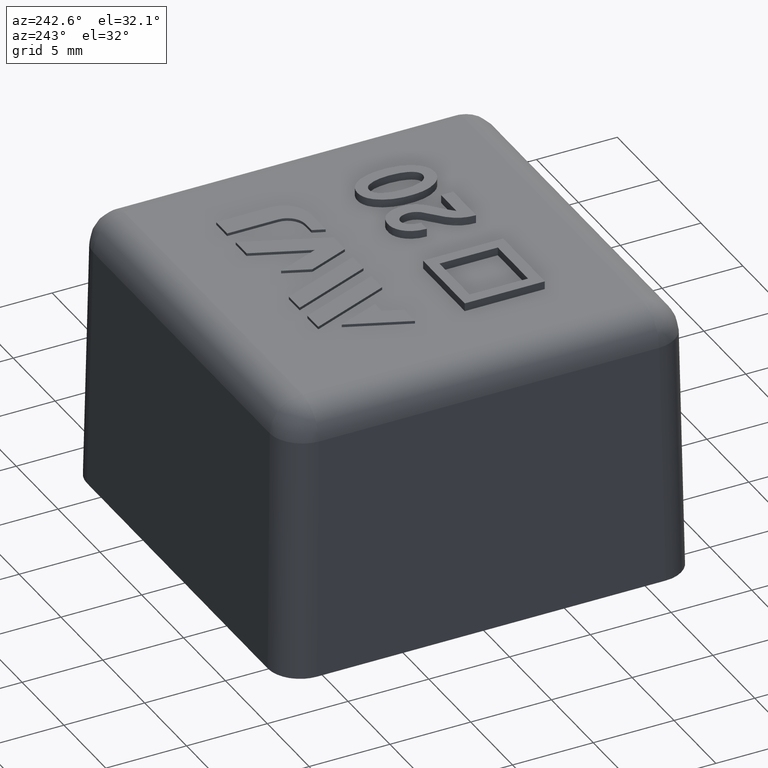
[diagram: clean part render]
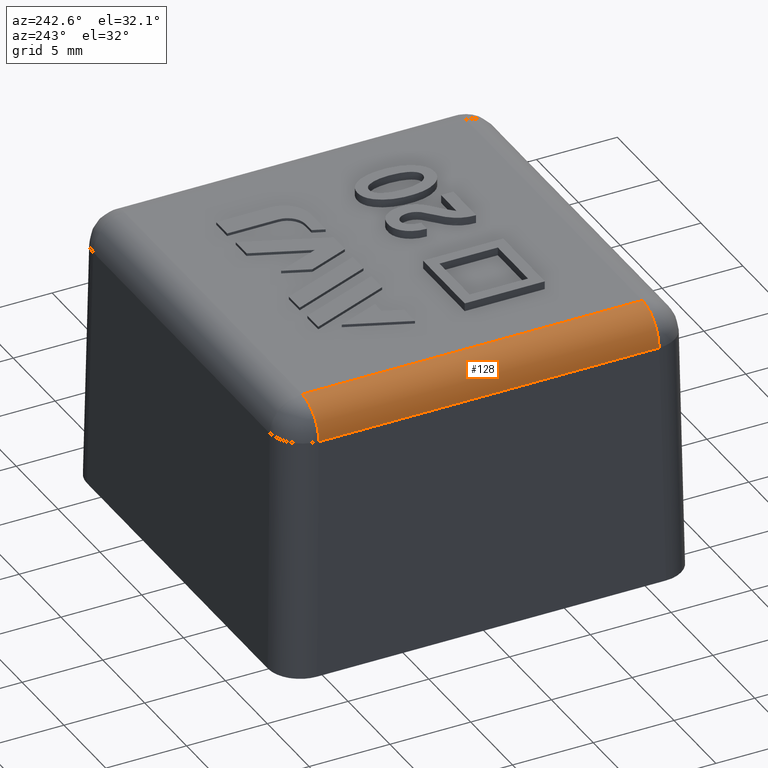
[diagram: same view with one face highlighted and labeled with its STEP entity id]
A machine part, auxiliary view. The second image highlights one B-rep face of the part: STEP entity #128.
In plain terms, the highlighted cylindrical surface (edge-blend (fillet) strip) has radius 2 mm, axis along (0, 1, 0).
Its self-contained STEP definition (entity closure, byte-faithful):
#128 = ADVANCED_FACE( '', ( #268 ), #269, .T. );
#268 = FACE_OUTER_BOUND( '', #437, .T. );
#269 = CYLINDRICAL_SURFACE( '', #438, 2.00000000000000 );
#437 = EDGE_LOOP( '', ( #932, #933, #934, #935 ) );
#438 = AXIS2_PLACEMENT_3D( '', #936, #937, #938 );
#932 = ORIENTED_EDGE( '', *, *, #1271, .T. );
#933 = ORIENTED_EDGE( '', *, *, #1139, .F. );
#934 = ORIENTED_EDGE( '', *, *, #1268, .F. );
#935 = ORIENTED_EDGE( '', *, *, #1174, .F. );
#936 = CARTESIAN_POINT( '', ( -10.5378693699889, -12.8000000000000, 15.0000000000000 ) );
#937 = DIRECTION( '', ( 0.000000000000000, 1.00000000000000, 0.000000000000000 ) );
#938 = DIRECTION( '', ( 0.000000000000000, 0.000000000000000, -1.00000000000000 ) );
#1139 = EDGE_CURVE( '', #1325, #1320, #1327, .F. );
#1174 = EDGE_CURVE( '', #1395, #1397, #1398, .F. );
#1268 = EDGE_CURVE( '', #1397, #1325, #1541, .T. );
#1271 = EDGE_CURVE( '', #1395, #1320, #1545, .T. );
#1320 = VERTEX_POINT( '', #1646 );
#1325 = VERTEX_POINT( '', #1653 );
#1327 = LINE( '', #1656, #1657 );
#1395 = VERTEX_POINT( '', #1775 );
#1397 = VERTEX_POINT( '', #1778 );
#1398 = LINE( '', #1779, #1780 );
#1541 = CIRCLE( '', #2043, 2.00000000000000 );
#1545 = CIRCLE( '', #2047, 2.00000000000000 );
#1646 = CARTESIAN_POINT( '', ( -10.5378693699889, -10.5378693699889, 17.0000000000000 ) );
#1653 = CARTESIAN_POINT( '', ( -10.5378693699889, 10.5378693699889, 17.0000000000000 ) );
#1656 = CARTESIAN_POINT( '', ( -10.5378693699889, -10.5035685059075, 17.0000000000000 ) );
#1657 = VECTOR( '', #2185, 1000.00000000000 );
#1775 = CARTESIAN_POINT( '', ( -12.5375647603017, -10.5378693699889, 15.0349048128746 ) );
#1778 = CARTESIAN_POINT( '', ( -12.5375647603017, 10.5378693699889, 15.0349048128746 ) );
#1779 = CARTESIAN_POINT( '', ( -12.5375647603017, 10.5035685059075, 15.0349048128746 ) );
#1780 = VECTOR( '', #2219, 1000.00000000000 );
#2043 = AXIS2_PLACEMENT_3D( '', #2314, #2315, #2316 );
#2047 = AXIS2_PLACEMENT_3D( '', #2323, #2324, #2325 );
#2185 = DIRECTION( '', ( 0.000000000000000, 1.00000000000000, 0.000000000000000 ) );
#2219 = DIRECTION( '', ( 0.000000000000000, -1.00000000000000, 0.000000000000000 ) );
#2314 = CARTESIAN_POINT( '', ( -10.5378693699889, 10.5378693699889, 15.0000000000000 ) );
#2315 = DIRECTION( '', ( 0.000000000000000, 1.00000000000000, 0.000000000000000 ) );
#2316 = DIRECTION( '', ( 0.000000000000000, 0.000000000000000, 1.00000000000000 ) );
#2323 = CARTESIAN_POINT( '', ( -10.5378693699889, -10.5378693699889, 15.0000000000000 ) );
#2324 = DIRECTION( '', ( 0.000000000000000, 1.00000000000000, 0.000000000000000 ) );
#2325 = DIRECTION( '', ( 0.000000000000000, 0.000000000000000, 1.00000000000000 ) );